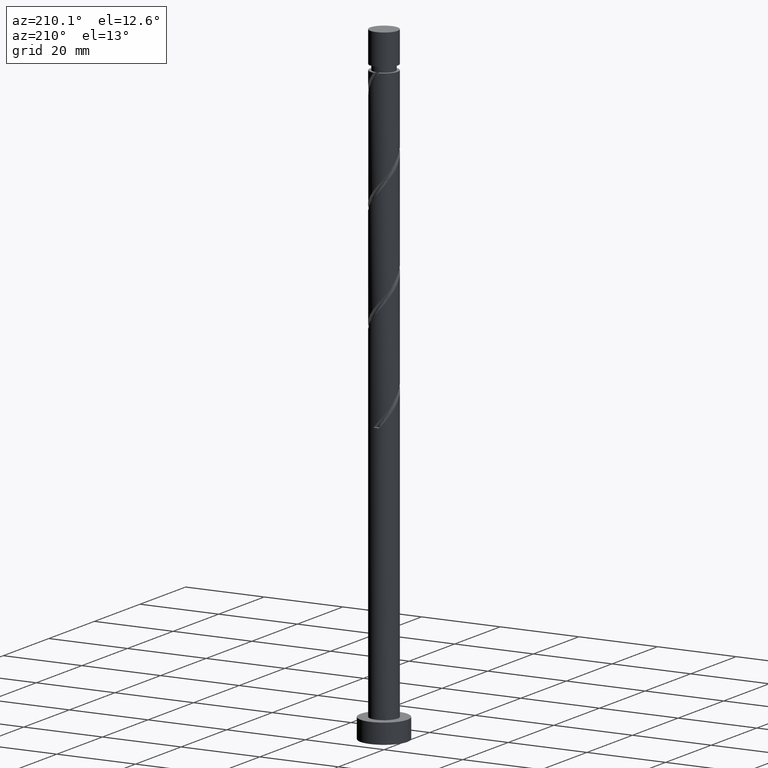
[diagram: clean part render]
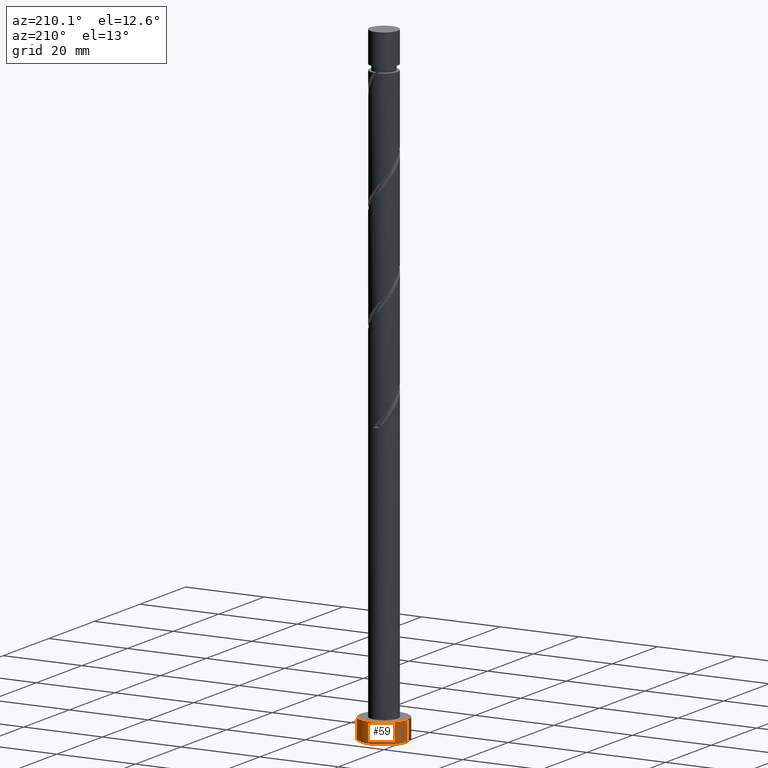
[diagram: same view with one face highlighted and labeled with its STEP entity id]
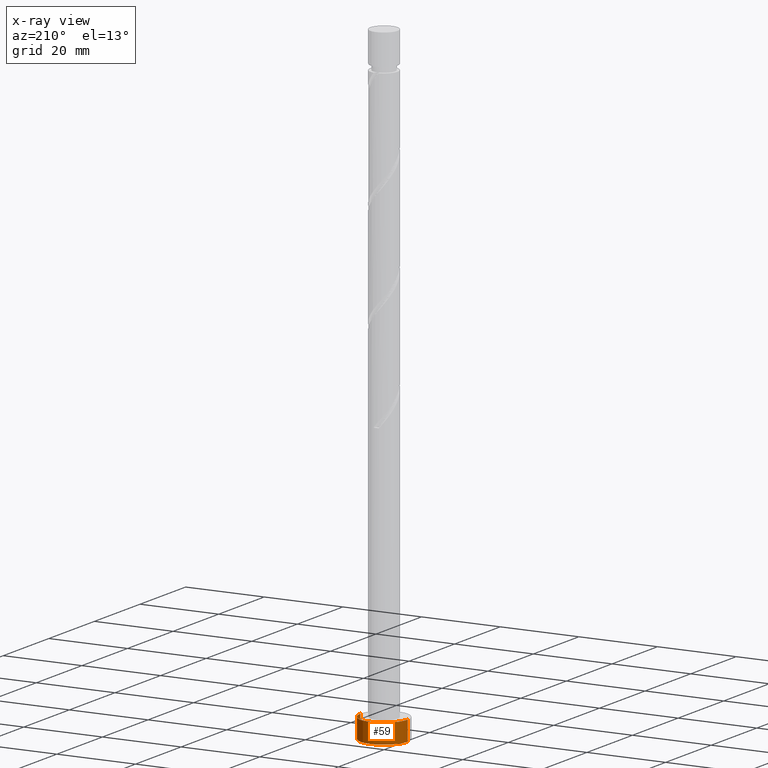
[diagram: x-ray of the same camera — body ghosted, the highlighted face saturated]
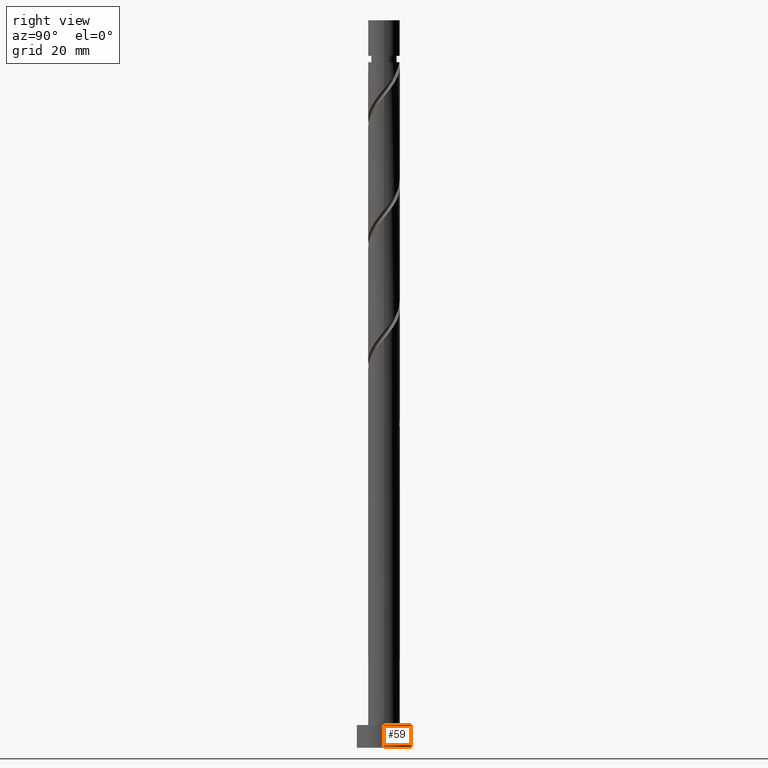
[diagram: same view with one face highlighted and labeled with its STEP entity id]
A machine part, auxiliary view. The second image highlights one B-rep face of the part: STEP entity #59.
The next image is the same camera in x-ray: the body ghosted, the highlighted face saturated — about 0% of this face is hidden behind the body in this view.
A second angle (right view) of the same face is appended — the face is thin or edge-on in the first view.
In plain terms, the highlighted cylindrical surface (edge-blend (fillet) strip) has radius 6 mm, axis along (-0, -0, -1).
Its self-contained STEP definition (entity closure, byte-faithful):
#57 = ORIENTED_EDGE ( 'NONE', *, *, #477, .T. ) ;
#59 = ADVANCED_FACE ( 'NONE', ( #250 ), #507, .T. ) ;
#75 = VECTOR ( 'NONE', #1095, 1000.000000000000000 ) ;
#83 = CARTESIAN_POINT ( 'NONE',  ( -6.000000000000000888, 0.000000000000000000, 5.000000000000000000 ) ) ;
#88 = DIRECTION ( 'NONE',  ( 0.000000000000000000, 0.000000000000000000, 1.000000000000000000 ) ) ;
#150 = CIRCLE ( 'NONE', #898, 6.000000000000000888 ) ;
#167 = CARTESIAN_POINT ( 'NONE',  ( 6.000000000000000888, 7.347880794884120722E-16, 5.000000000000000000 ) ) ;
#224 = CARTESIAN_POINT ( 'NONE',  ( -6.000000000000000888, 0.000000000000000000, 0.000000000000000000 ) ) ;
#250 = FACE_OUTER_BOUND ( 'NONE', #912, .T. ) ;
#319 = ORIENTED_EDGE ( 'NONE', *, *, #1370, .T. ) ;
#408 = VERTEX_POINT ( 'NONE', #83 ) ;
#474 = VECTOR ( 'NONE', #1637, 1000.000000000000000 ) ;
#477 = EDGE_CURVE ( 'NONE', #516, #1365, #150, .T. ) ;
#507 = CYLINDRICAL_SURFACE ( 'NONE', #1501, 6.000000000000000888 ) ;
#516 = VERTEX_POINT ( 'NONE', #1627 ) ;
#723 = CARTESIAN_POINT ( 'NONE',  ( 6.000000000000000888, 7.347880794884120722E-16, 5.000000000000000000 ) ) ;
#825 = CARTESIAN_POINT ( 'NONE',  ( -6.000000000000000888, 0.000000000000000000, 5.000000000000000000 ) ) ;
#847 = LINE ( 'NONE', #723, #474 ) ;
#898 = AXIS2_PLACEMENT_3D ( 'NONE', #1612, #88, #1482 ) ;
#912 = EDGE_LOOP ( 'NONE', ( #1188, #319, #57, #1080 ) ) ;
#1036 = DIRECTION ( 'NONE',  ( -1.000000000000000000, 0.000000000000000000, 0.000000000000000000 ) ) ;
#1055 = DIRECTION ( 'NONE',  ( 0.000000000000000000, 0.000000000000000000, 1.000000000000000000 ) ) ;
#1080 = ORIENTED_EDGE ( 'NONE', *, *, #1205, .F. ) ;
#1095 = DIRECTION ( 'NONE',  ( -0.000000000000000000, -0.000000000000000000, -1.000000000000000000 ) ) ;
#1148 = EDGE_CURVE ( 'NONE', #1170, #408, #1173, .T. ) ;
#1166 = CARTESIAN_POINT ( 'NONE',  ( 0.000000000000000000, 0.000000000000000000, 5.000000000000000000 ) ) ;
#1170 = VERTEX_POINT ( 'NONE', #167 ) ;
#1173 = CIRCLE ( 'NONE', #1398, 6.000000000000000888 ) ;
#1188 = ORIENTED_EDGE ( 'NONE', *, *, #1148, .F. ) ;
#1205 = EDGE_CURVE ( 'NONE', #408, #1365, #1596, .T. ) ;
#1233 = CARTESIAN_POINT ( 'NONE',  ( 0.000000000000000000, 0.000000000000000000, 5.000000000000000000 ) ) ;
#1275 = DIRECTION ( 'NONE',  ( -0.000000000000000000, -0.000000000000000000, -1.000000000000000000 ) ) ;
#1365 = VERTEX_POINT ( 'NONE', #224 ) ;
#1370 = EDGE_CURVE ( 'NONE', #1170, #516, #847, .T. ) ;
#1398 = AXIS2_PLACEMENT_3D ( 'NONE', #1233, #1055, #1576 ) ;
#1482 = DIRECTION ( 'NONE',  ( 1.000000000000000000, 0.000000000000000000, 0.000000000000000000 ) ) ;
#1501 = AXIS2_PLACEMENT_3D ( 'NONE', #1166, #1275, #1036 ) ;
#1576 = DIRECTION ( 'NONE',  ( 1.000000000000000000, 0.000000000000000000, 0.000000000000000000 ) ) ;
#1596 = LINE ( 'NONE', #825, #75 ) ;
#1612 = CARTESIAN_POINT ( 'NONE',  ( 0.000000000000000000, 0.000000000000000000, 0.000000000000000000 ) ) ;
#1627 = CARTESIAN_POINT ( 'NONE',  ( 6.000000000000000888, 7.347880794884120722E-16, 0.000000000000000000 ) ) ;
#1637 = DIRECTION ( 'NONE',  ( -0.000000000000000000, -0.000000000000000000, -1.000000000000000000 ) ) ;